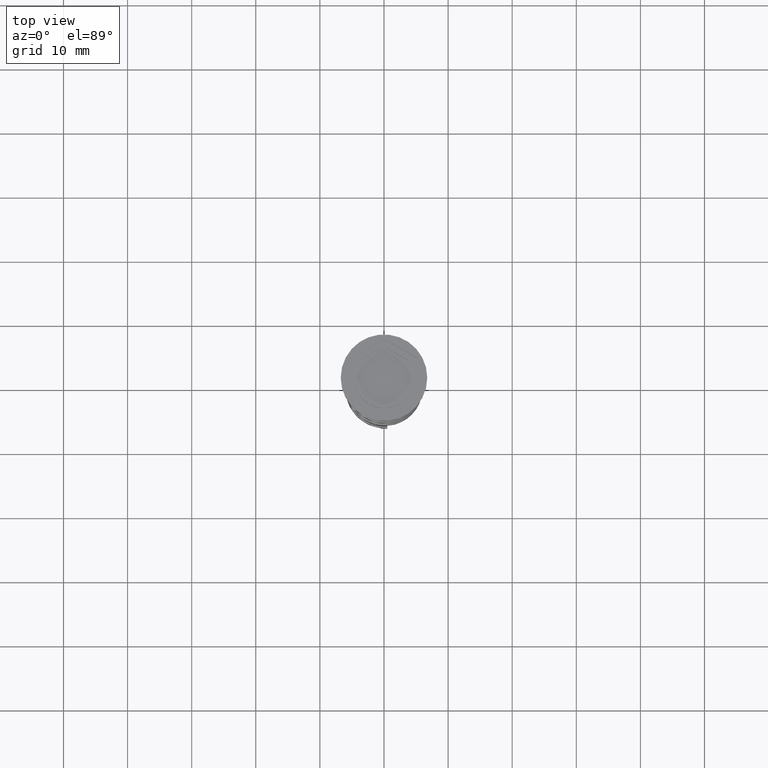
[diagram: clean part render]
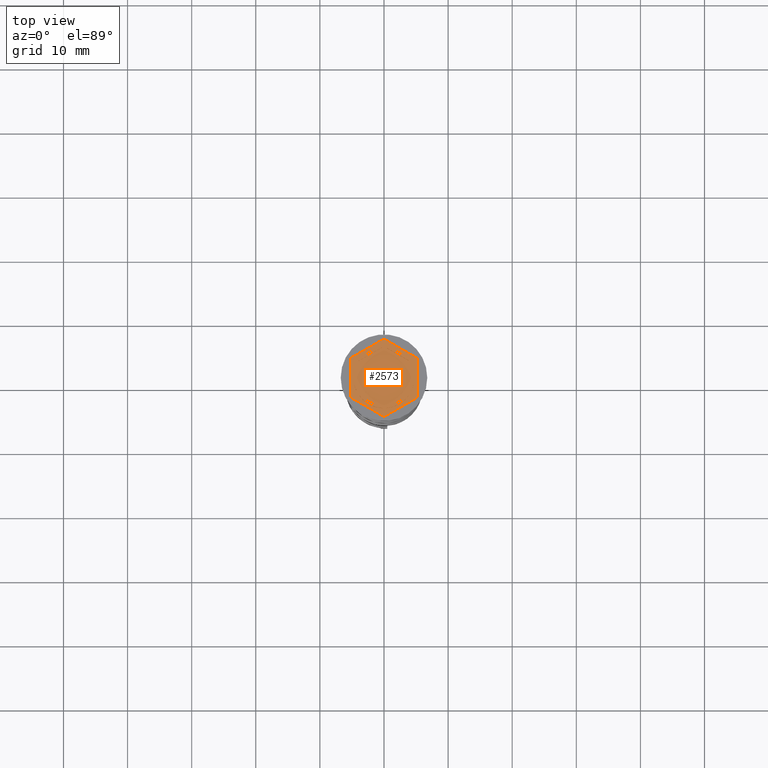
[diagram: same view with one face highlighted and labeled with its STEP entity id]
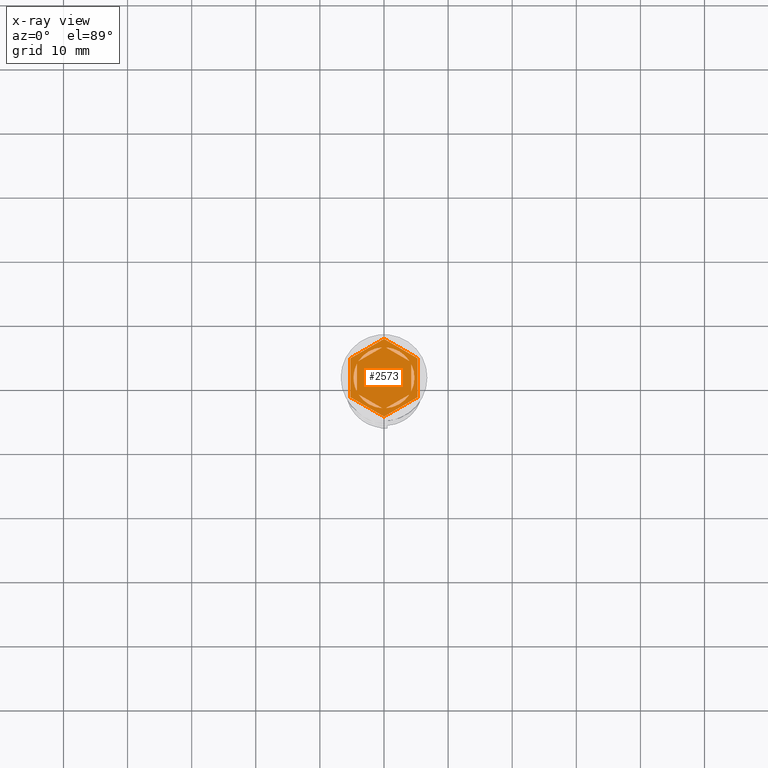
[diagram: x-ray of the same camera — body ghosted, the highlighted face saturated]
A machine part, top view. The second image highlights one B-rep face of the part: STEP entity #2573.
The next image is the same camera in x-ray: the body ghosted, the highlighted face saturated — about 0% of this face is hidden behind the body in this view.
In plain terms, the highlighted planar face has unit normal (0, 0, 1).
Its self-contained STEP definition (entity closure, byte-faithful):
#37 = ORIENTED_EDGE ( 'NONE', *, *, #2494, .F. ) ;
#42 = CARTESIAN_POINT ( 'NONE',  ( -5.250000000000000888, 3.031088913245535643, -1.000000000000000000 ) ) ;
#96 = LINE ( 'NONE', #2221, #563 ) ;
#105 = FACE_BOUND ( 'NONE', #1516, .T. ) ;
#112 = LINE ( 'NONE', #2553, #277 ) ;
#133 = FACE_BOUND ( 'NONE', #1256, .T. ) ;
#136 = CIRCLE ( 'NONE', #2136, 4.750000000000000888 ) ;
#169 = ORIENTED_EDGE ( 'NONE', *, *, #3444, .F. ) ;
#180 = PLANE ( 'NONE',  #382 ) ;
#188 = CARTESIAN_POINT ( 'NONE',  ( -3.962117307087385409, -2.619947794304041899, -1.000000000000000888 ) ) ;
#211 = LINE ( 'NONE', #2722, #1628 ) ;
#223 = CIRCLE ( 'NONE', #2265, 4.750000000000000888 ) ;
#267 = CIRCLE ( 'NONE', #1335, 4.750000000000000888 ) ;
#277 = VECTOR ( 'NONE', #891, 1000.000000000000000 ) ;
#360 = ORIENTED_EDGE ( 'NONE', *, *, #1085, .T. ) ;
#382 = AXIS2_PLACEMENT_3D ( 'NONE', #929, #471, #3130 ) ;
#391 = VERTEX_POINT ( 'NONE', #651 ) ;
#402 = ORIENTED_EDGE ( 'NONE', *, *, #2466, .F. ) ;
#404 = EDGE_CURVE ( 'NONE', #1529, #2887, #136, .T. ) ;
#447 = CARTESIAN_POINT ( 'NONE',  ( -4.250000000000000000, -2.453738644055909912, -1.000000000000000888 ) ) ;
#471 = DIRECTION ( 'NONE',  ( 0.000000000000000000, 0.000000000000000000, 1.000000000000000000 ) ) ;
#534 = CARTESIAN_POINT ( 'NONE',  ( -5.250000000000000888, -3.031088913245536087, -1.000000000000000000 ) ) ;
#563 = VECTOR ( 'NONE', #3308, 1000.000000000000000 ) ;
#570 = DIRECTION ( 'NONE',  ( 1.000000000000000000, 0.000000000000000000, 0.000000000000000000 ) ) ;
#588 = CARTESIAN_POINT ( 'NONE',  ( 4.250000000000000000, 2.453738644055910800, -1.000000000000000888 ) ) ;
#639 = EDGE_LOOP ( 'NONE', ( #894, #2606 ) ) ;
#651 = CARTESIAN_POINT ( 'NONE',  ( -4.250000000000000000, -2.121320343559643717, -1.000000000000000888 ) ) ;
#662 = FACE_BOUND ( 'NONE', #2187, .T. ) ;
#668 = CARTESIAN_POINT ( 'NONE',  ( 0.000000000000000000, 6.062177826491072175, -1.000000000000000000 ) ) ;
#673 = VERTEX_POINT ( 'NONE', #1578 ) ;
#687 = CARTESIAN_POINT ( 'NONE',  ( 0.000000000000000000, 0.000000000000000000, -1.000000000000000000 ) ) ;
#694 = ORIENTED_EDGE ( 'NONE', *, *, #2469, .T. ) ;
#700 = EDGE_CURVE ( 'NONE', #2699, #2906, #2976, .T. ) ;
#710 = VERTEX_POINT ( 'NONE', #1049 ) ;
#716 = CARTESIAN_POINT ( 'NONE',  ( 5.250000000000000888, 3.031088913245536087, -1.000000000000000000 ) ) ;
#743 = EDGE_CURVE ( 'NONE', #391, #2394, #211, .T. ) ;
#801 = CARTESIAN_POINT ( 'NONE',  ( 0.000000000000000000, 0.000000000000000000, -1.000000000000000000 ) ) ;
#804 = DIRECTION ( 'NONE',  ( 0.8660254037844385966, 0.4999999999999999445, 0.000000000000000000 ) ) ;
#808 = LINE ( 'NONE', #904, #1986 ) ;
#860 = DIRECTION ( 'NONE',  ( 0.000000000000000000, 0.000000000000000000, 1.000000000000000000 ) ) ;
#891 = DIRECTION ( 'NONE',  ( 0.000000000000000000, -1.000000000000000000, 0.000000000000000000 ) ) ;
#893 = EDGE_CURVE ( 'NONE', #1032, #2452, #1383, .T. ) ;
#894 = ORIENTED_EDGE ( 'NONE', *, *, #2032, .F. ) ;
#904 = CARTESIAN_POINT ( 'NONE',  ( 5.250000000000000888, -3.031088913245536087, -1.000000000000000000 ) ) ;
#929 = CARTESIAN_POINT ( 'NONE',  ( 0.000000000000000000, 0.000000000000000000, -1.000000000000000000 ) ) ;
#930 = EDGE_CURVE ( 'NONE', #1719, #1474, #96, .T. ) ;
#961 = CARTESIAN_POINT ( 'NONE',  ( -0.2878826929126160894, 4.741268137863686505, -1.000000000000000888 ) ) ;
#966 = VECTOR ( 'NONE', #2545, 1000.000000000000227 ) ;
#989 = DIRECTION ( 'NONE',  ( 0.000000000000000000, 0.000000000000000000, 1.000000000000000000 ) ) ;
#1010 = ORIENTED_EDGE ( 'NONE', *, *, #2720, .F. ) ;
#1019 = VECTOR ( 'NONE', #804, 1000.000000000000114 ) ;
#1032 = VERTEX_POINT ( 'NONE', #534 ) ;
#1049 = CARTESIAN_POINT ( 'NONE',  ( -4.750000000000000888, 0.000000000000000000, -1.000000000000000000 ) ) ;
#1078 = VECTOR ( 'NONE', #3110, 1000.000000000000000 ) ;
#1085 = EDGE_CURVE ( 'NONE', #2452, #3072, #3234, .T. ) ;
#1185 = DIRECTION ( 'NONE',  ( -1.767428939690775055E-16, -1.000000000000000000, 0.000000000000000000 ) ) ;
#1235 = VECTOR ( 'NONE', #1655, 1000.000000000000000 ) ;
#1236 = CARTESIAN_POINT ( 'NONE',  ( 4.249999999999999112, -2.453738644055910356, -1.000000000000000888 ) ) ;
#1256 = EDGE_LOOP ( 'NONE', ( #1685, #2363 ) ) ;
#1267 = CARTESIAN_POINT ( 'NONE',  ( -3.962117307087385409, 2.619947794304041899, -1.000000000000000888 ) ) ;
#1277 = CARTESIAN_POINT ( 'NONE',  ( 0.2878826929126150347, -4.741268137863686505, -1.000000000000000888 ) ) ;
#1282 = DIRECTION ( 'NONE',  ( 0.000000000000000000, 1.000000000000000000, 0.000000000000000000 ) ) ;
#1335 = AXIS2_PLACEMENT_3D ( 'NONE', #1382, #2718, #1912 ) ;
#1351 = CARTESIAN_POINT ( 'NONE',  ( 4.336808689942017736E-16, 4.907477288111819824, -1.000000000000000888 ) ) ;
#1353 = EDGE_LOOP ( 'NONE', ( #169, #1953 ) ) ;
#1363 = LINE ( 'NONE', #588, #1235 ) ;
#1374 = CARTESIAN_POINT ( 'NONE',  ( 4.249999999999999112, 2.121320343559644162, -1.000000000000000888 ) ) ;
#1382 = CARTESIAN_POINT ( 'NONE',  ( 0.000000000000000000, 0.000000000000000000, -1.000000000000000000 ) ) ;
#1383 = LINE ( 'NONE', #2486, #2780 ) ;
#1388 = VERTEX_POINT ( 'NONE', #1980 ) ;
#1431 = DIRECTION ( 'NONE',  ( 0.000000000000000000, 0.000000000000000000, 1.000000000000000000 ) ) ;
#1448 = AXIS2_PLACEMENT_3D ( 'NONE', #2575, #860, #570 ) ;
#1460 = LINE ( 'NONE', #447, #1078 ) ;
#1474 = VERTEX_POINT ( 'NONE', #1277 ) ;
#1478 = ORIENTED_EDGE ( 'NONE', *, *, #3282, .T. ) ;
#1506 = DIRECTION ( 'NONE',  ( 1.000000000000000000, 0.000000000000000000, 0.000000000000000000 ) ) ;
#1509 = AXIS2_PLACEMENT_3D ( 'NONE', #1765, #3401, #2903 ) ;
#1516 = EDGE_LOOP ( 'NONE', ( #1010, #402 ) ) ;
#1529 = VERTEX_POINT ( 'NONE', #188 ) ;
#1578 = CARTESIAN_POINT ( 'NONE',  ( 4.249999999999999112, -2.121320343559645938, -1.000000000000000888 ) ) ;
#1628 = VECTOR ( 'NONE', #1282, 1000.000000000000000 ) ;
#1629 = ORIENTED_EDGE ( 'NONE', *, *, #893, .T. ) ;
#1655 = DIRECTION ( 'NONE',  ( 0.8660254037844387076, -0.4999999999999998335, 0.000000000000000000 ) ) ;
#1685 = ORIENTED_EDGE ( 'NONE', *, *, #2623, .F. ) ;
#1707 = CARTESIAN_POINT ( 'NONE',  ( 0.000000000000000000, 0.000000000000000000, -1.000000000000000000 ) ) ;
#1719 = VERTEX_POINT ( 'NONE', #2717 ) ;
#1725 = EDGE_CURVE ( 'NONE', #2060, #1893, #1363, .T. ) ;
#1735 = CARTESIAN_POINT ( 'NONE',  ( 5.250000000000000888, -3.031088913245536087, -1.000000000000000000 ) ) ;
#1748 = CARTESIAN_POINT ( 'NONE',  ( 3.962117307087384521, 2.619947794304043232, -1.000000000000000888 ) ) ;
#1762 = DIRECTION ( 'NONE',  ( 0.000000000000000000, 0.000000000000000000, 1.000000000000000000 ) ) ;
#1765 = CARTESIAN_POINT ( 'NONE',  ( 0.000000000000000000, 0.000000000000000000, -1.000000000000000000 ) ) ;
#1854 = DIRECTION ( 'NONE',  ( 0.000000000000000000, 0.000000000000000000, 1.000000000000000000 ) ) ;
#1855 = VERTEX_POINT ( 'NONE', #42 ) ;
#1882 = DIRECTION ( 'NONE',  ( 0.000000000000000000, 1.000000000000000000, 0.000000000000000000 ) ) ;
#1893 = VERTEX_POINT ( 'NONE', #1748 ) ;
#1912 = DIRECTION ( 'NONE',  ( 1.000000000000000000, 0.000000000000000000, 0.000000000000000000 ) ) ;
#1926 = EDGE_CURVE ( 'NONE', #1855, #1032, #112, .T. ) ;
#1953 = ORIENTED_EDGE ( 'NONE', *, *, #930, .F. ) ;
#1963 = CARTESIAN_POINT ( 'NONE',  ( 0.000000000000000000, 6.062177826491072175, -1.000000000000000000 ) ) ;
#1980 = CARTESIAN_POINT ( 'NONE',  ( 5.250000000000000888, 3.031088913245536087, -1.000000000000000000 ) ) ;
#1986 = VECTOR ( 'NONE', #1882, 1000.000000000000000 ) ;
#1991 = CIRCLE ( 'NONE', #2428, 4.750000000000000888 ) ;
#2032 = EDGE_CURVE ( 'NONE', #1893, #2060, #2600, .T. ) ;
#2056 = CARTESIAN_POINT ( 'NONE',  ( 0.000000000000000000, 0.000000000000000000, -1.000000000000000000 ) ) ;
#2060 = VERTEX_POINT ( 'NONE', #3176 ) ;
#2106 = EDGE_CURVE ( 'NONE', #710, #391, #1991, .T. ) ;
#2136 = AXIS2_PLACEMENT_3D ( 'NONE', #687, #1762, #2807 ) ;
#2179 = DIRECTION ( 'NONE',  ( 1.000000000000000000, 0.000000000000000000, 0.000000000000000000 ) ) ;
#2187 = EDGE_LOOP ( 'NONE', ( #3439, #37 ) ) ;
#2202 = CIRCLE ( 'NONE', #3286, 4.750000000000000888 ) ;
#2211 = EDGE_CURVE ( 'NONE', #3509, #1855, #2500, .T. ) ;
#2221 = CARTESIAN_POINT ( 'NONE',  ( -8.673617379884035472E-16, -4.907477288111819824, -1.000000000000000888 ) ) ;
#2230 = DIRECTION ( 'NONE',  ( 1.000000000000000000, 0.000000000000000000, 0.000000000000000000 ) ) ;
#2265 = AXIS2_PLACEMENT_3D ( 'NONE', #1707, #1431, #2230 ) ;
#2274 = ORIENTED_EDGE ( 'NONE', *, *, #743, .F. ) ;
#2295 = VERTEX_POINT ( 'NONE', #1374 ) ;
#2301 = FACE_BOUND ( 'NONE', #639, .T. ) ;
#2347 = CARTESIAN_POINT ( 'NONE',  ( -4.250000000000000000, 2.121320343559643717, -1.000000000000000888 ) ) ;
#2363 = ORIENTED_EDGE ( 'NONE', *, *, #700, .F. ) ;
#2394 = VERTEX_POINT ( 'NONE', #2347 ) ;
#2428 = AXIS2_PLACEMENT_3D ( 'NONE', #2056, #989, #1506 ) ;
#2452 = VERTEX_POINT ( 'NONE', #2892 ) ;
#2466 = EDGE_CURVE ( 'NONE', #2295, #673, #3091, .T. ) ;
#2469 = EDGE_CURVE ( 'NONE', #1388, #3509, #3411, .T. ) ;
#2486 = CARTESIAN_POINT ( 'NONE',  ( -5.250000000000000888, -3.031088913245536087, -1.000000000000000000 ) ) ;
#2494 = EDGE_CURVE ( 'NONE', #2887, #1529, #1460, .T. ) ;
#2500 = LINE ( 'NONE', #1963, #966 ) ;
#2545 = DIRECTION ( 'NONE',  ( -0.8660254037844385966, -0.5000000000000000000, 0.000000000000000000 ) ) ;
#2553 = CARTESIAN_POINT ( 'NONE',  ( -5.250000000000000888, 3.031088913245535643, -1.000000000000000000 ) ) ;
#2558 = ORIENTED_EDGE ( 'NONE', *, *, #2106, .F. ) ;
#2573 = ADVANCED_FACE ( 'NONE', ( #2301, #105, #2832, #662, #2913, #133, #3390 ), #180, .T. ) ;
#2575 = CARTESIAN_POINT ( 'NONE',  ( 0.000000000000000000, 0.000000000000000000, -1.000000000000000000 ) ) ;
#2600 = CIRCLE ( 'NONE', #1509, 4.750000000000000888 ) ;
#2606 = ORIENTED_EDGE ( 'NONE', *, *, #1725, .F. ) ;
#2623 = EDGE_CURVE ( 'NONE', #2906, #2699, #2834, .T. ) ;
#2666 = ORIENTED_EDGE ( 'NONE', *, *, #2211, .T. ) ;
#2699 = VERTEX_POINT ( 'NONE', #1267 ) ;
#2717 = CARTESIAN_POINT ( 'NONE',  ( 3.962117307087384521, -2.619947794304042787, -1.000000000000000888 ) ) ;
#2718 = DIRECTION ( 'NONE',  ( 0.000000000000000000, 0.000000000000000000, 1.000000000000000000 ) ) ;
#2720 = EDGE_CURVE ( 'NONE', #673, #2295, #267, .T. ) ;
#2722 = CARTESIAN_POINT ( 'NONE',  ( -4.250000000000000000, 2.453738644055909468, -1.000000000000000888 ) ) ;
#2780 = VECTOR ( 'NONE', #3324, 1000.000000000000000 ) ;
#2807 = DIRECTION ( 'NONE',  ( 1.000000000000000000, 0.000000000000000000, 0.000000000000000000 ) ) ;
#2812 = EDGE_CURVE ( 'NONE', #2394, #710, #2202, .T. ) ;
#2832 = FACE_BOUND ( 'NONE', #1353, .T. ) ;
#2834 = CIRCLE ( 'NONE', #1448, 4.750000000000000888 ) ;
#2887 = VERTEX_POINT ( 'NONE', #3037 ) ;
#2892 = CARTESIAN_POINT ( 'NONE',  ( 8.729740977282959667E-16, -6.062177826491071286, -1.000000000000000000 ) ) ;
#2903 = DIRECTION ( 'NONE',  ( 1.000000000000000000, 0.000000000000000000, 0.000000000000000000 ) ) ;
#2906 = VERTEX_POINT ( 'NONE', #961 ) ;
#2913 = FACE_BOUND ( 'NONE', #3271, .T. ) ;
#2960 = VECTOR ( 'NONE', #3373, 1000.000000000000227 ) ;
#2976 = LINE ( 'NONE', #1351, #3343 ) ;
#2988 = CARTESIAN_POINT ( 'NONE',  ( 8.729740977282959667E-16, -6.062177826491071286, -1.000000000000000000 ) ) ;
#3037 = CARTESIAN_POINT ( 'NONE',  ( -0.2878826929126160894, -4.741268137863686505, -1.000000000000000888 ) ) ;
#3072 = VERTEX_POINT ( 'NONE', #1735 ) ;
#3091 = LINE ( 'NONE', #1236, #3227 ) ;
#3110 = DIRECTION ( 'NONE',  ( -0.8660254037844385966, 0.5000000000000001110, 0.000000000000000000 ) ) ;
#3130 = DIRECTION ( 'NONE',  ( 1.000000000000000000, 0.000000000000000000, -0.000000000000000000 ) ) ;
#3176 = CARTESIAN_POINT ( 'NONE',  ( 0.2878826929126145906, 4.741268137863685617, -1.000000000000000888 ) ) ;
#3227 = VECTOR ( 'NONE', #1185, 1000.000000000000000 ) ;
#3234 = LINE ( 'NONE', #2988, #1019 ) ;
#3257 = DIRECTION ( 'NONE',  ( 0.8660254037844385966, 0.5000000000000001110, -0.000000000000000000 ) ) ;
#3271 = EDGE_LOOP ( 'NONE', ( #3279, #2274, #2558 ) ) ;
#3279 = ORIENTED_EDGE ( 'NONE', *, *, #2812, .F. ) ;
#3282 = EDGE_CURVE ( 'NONE', #3072, #1388, #808, .T. ) ;
#3286 = AXIS2_PLACEMENT_3D ( 'NONE', #801, #1854, #2179 ) ;
#3308 = DIRECTION ( 'NONE',  ( -0.8660254037844387076, -0.4999999999999999445, 0.000000000000000000 ) ) ;
#3324 = DIRECTION ( 'NONE',  ( 0.8660254037844387076, -0.4999999999999998335, 0.000000000000000000 ) ) ;
#3337 = EDGE_LOOP ( 'NONE', ( #694, #2666, #3456, #1629, #360, #1478 ) ) ;
#3343 = VECTOR ( 'NONE', #3257, 1000.000000000000000 ) ;
#3373 = DIRECTION ( 'NONE',  ( -0.8660254037844385966, 0.4999999999999998890, 0.000000000000000000 ) ) ;
#3390 = FACE_OUTER_BOUND ( 'NONE', #3337, .T. ) ;
#3401 = DIRECTION ( 'NONE',  ( 0.000000000000000000, 0.000000000000000000, 1.000000000000000000 ) ) ;
#3411 = LINE ( 'NONE', #716, #2960 ) ;
#3439 = ORIENTED_EDGE ( 'NONE', *, *, #404, .F. ) ;
#3444 = EDGE_CURVE ( 'NONE', #1474, #1719, #223, .T. ) ;
#3456 = ORIENTED_EDGE ( 'NONE', *, *, #1926, .T. ) ;
#3509 = VERTEX_POINT ( 'NONE', #668 ) ;